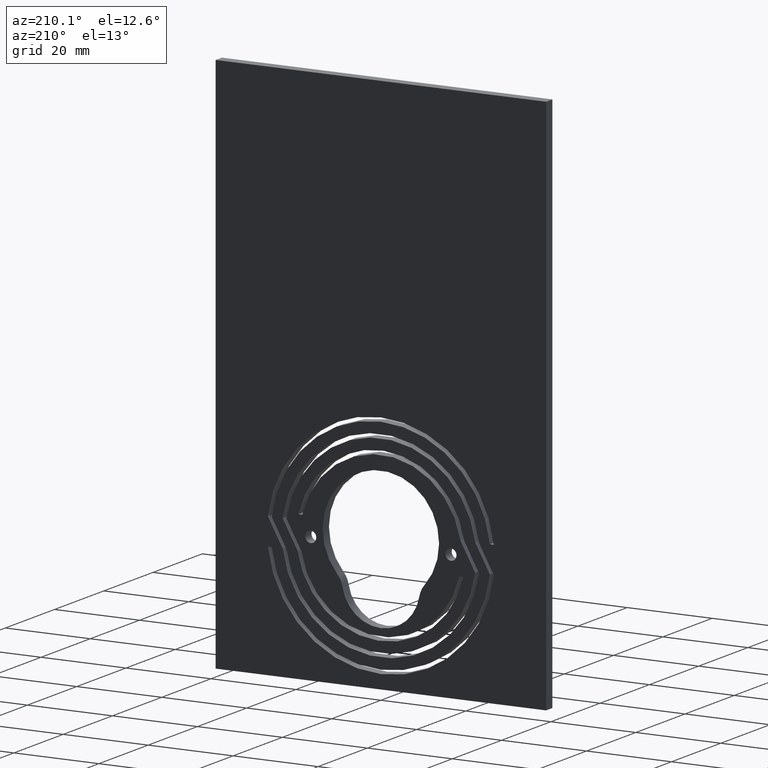
[diagram: clean part render]
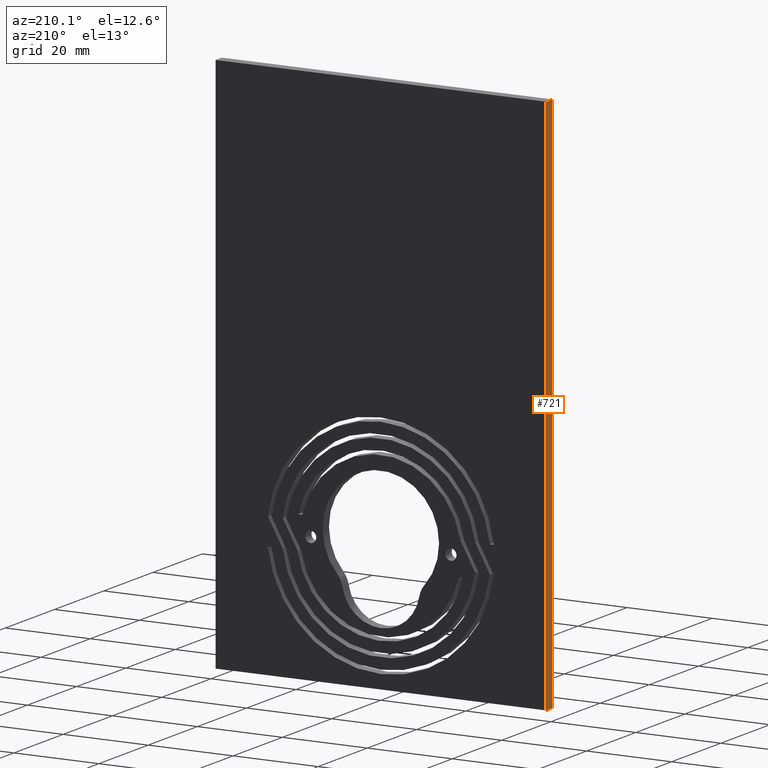
[diagram: same view with one face highlighted and labeled with its STEP entity id]
A machine part, auxiliary view. The second image highlights one B-rep face of the part: STEP entity #721.
In plain terms, the highlighted planar face has unit normal (-1, 0, 0).
Its self-contained STEP definition (entity closure, byte-faithful):
#43=PLANE('',#808);
#79=FACE_OUTER_BOUND('',#115,.T.);
#115=EDGE_LOOP('',(#595,#596,#597,#598));
#189=LINE('',#1225,#255);
#190=LINE('',#1228,#256);
#191=LINE('',#1230,#257);
#192=LINE('',#1231,#258);
#255=VECTOR('',#1013,10.);
#256=VECTOR('',#1016,10.);
#257=VECTOR('',#1017,10.);
#258=VECTOR('',#1018,10.);
#361=VERTEX_POINT('',#1221);
#362=VERTEX_POINT('',#1223);
#363=VERTEX_POINT('',#1227);
#364=VERTEX_POINT('',#1229);
#461=EDGE_CURVE('',#361,#362,#189,.T.);
#462=EDGE_CURVE('',#363,#361,#190,.T.);
#463=EDGE_CURVE('',#364,#362,#191,.T.);
#464=EDGE_CURVE('',#363,#364,#192,.T.);
#595=ORIENTED_EDGE('',*,*,#462,.T.);
#596=ORIENTED_EDGE('',*,*,#461,.T.);
#597=ORIENTED_EDGE('',*,*,#463,.F.);
#598=ORIENTED_EDGE('',*,*,#464,.F.);
#721=ADVANCED_FACE('',(#79),#43,.T.);
#808=AXIS2_PLACEMENT_3D('',#1226,#1014,#1015);
#1013=DIRECTION('',(0.,-1.,0.));
#1014=DIRECTION('center_axis',(-1.,0.,0.));
#1015=DIRECTION('ref_axis',(0.,0.,-1.));
#1016=DIRECTION('',(0.,0.,-1.));
#1017=DIRECTION('',(0.,0.,-1.));
#1018=DIRECTION('',(0.,-1.,0.));
#1221=CARTESIAN_POINT('',(-38.8874,0.,-32.));
#1223=CARTESIAN_POINT('',(-38.8874,-2.54,-32.));
#1225=CARTESIAN_POINT('',(-38.8874,0.,-32.));
#1226=CARTESIAN_POINT('Origin',(-38.8874,0.,95.));
#1227=CARTESIAN_POINT('',(-38.8874,0.,95.));
#1228=CARTESIAN_POINT('',(-38.8874,0.,95.));
#1229=CARTESIAN_POINT('',(-38.8874,-2.54,95.));
#1230=CARTESIAN_POINT('',(-38.8874,-2.54,95.));
#1231=CARTESIAN_POINT('',(-38.8874,0.,95.));